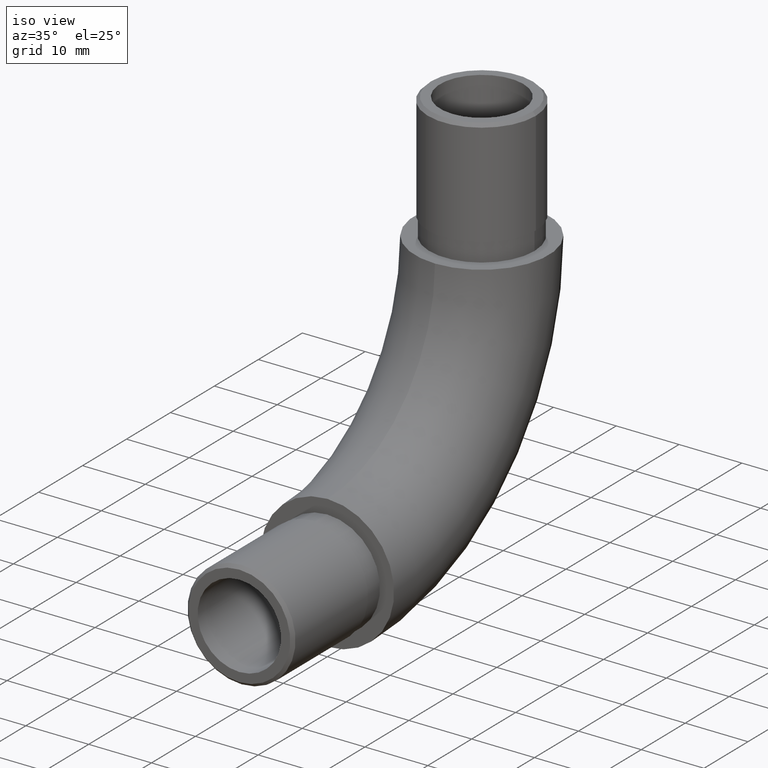
[diagram: clean part render]
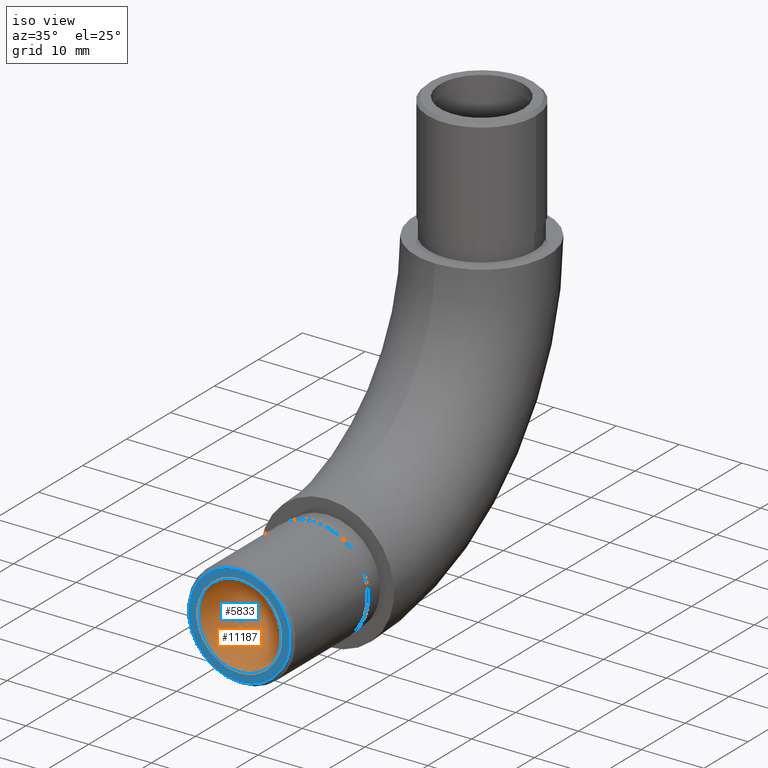
[diagram: same view with the hole feature highlighted: cylindrical wall and planar end face, labeled with their STEP entity ids]
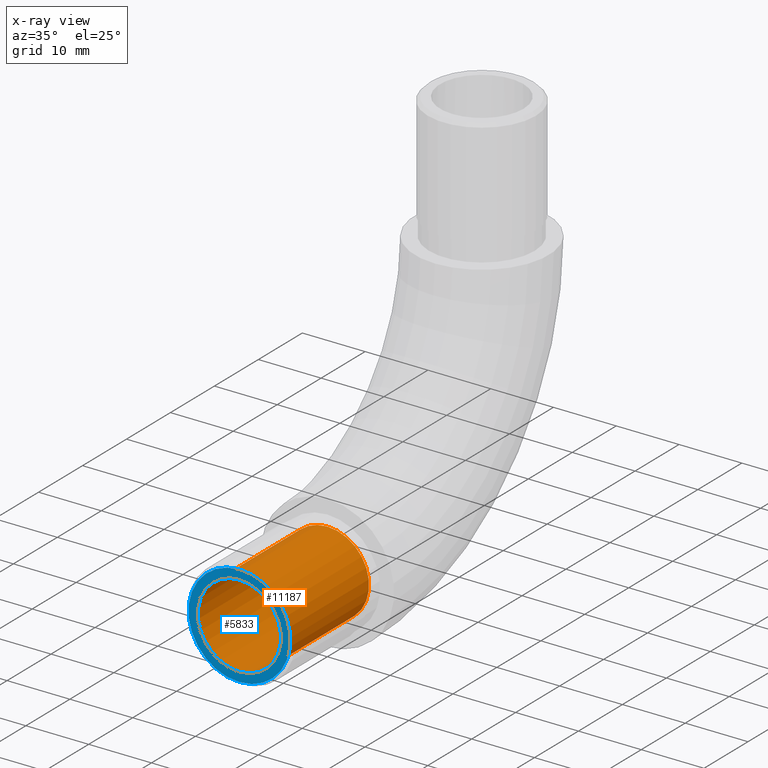
[diagram: x-ray of the same camera — body ghosted, the hole faces saturated]
A machine part, iso view. The highlighted faces form one hole feature of diameter 13.3 mm: the cylindrical wall (entity #11187, orange) and its adjacent planar end face (entity #5833, blue) — they share a circular edge in the B-rep.
The next image is the same camera in x-ray (body ghosted, the hole faces saturated) — the bore reads through the body.
Wall:
#566 = FACE_OUTER_BOUND ( 'NONE', #1739, .T. ) ;
#1011 = VERTEX_POINT ( 'NONE', #3988 ) ;
#1616 = EDGE_LOOP ( 'NONE', ( #3559 ) ) ;
#1624 = AXIS2_PLACEMENT_3D ( 'NONE', #12624, #7737, #1843 ) ;
#1739 = EDGE_LOOP ( 'NONE', ( #12222 ) ) ;
#1794 = CIRCLE ( 'NONE', #1624, 6.649999999999999500 ) ;
#1814 = DIRECTION ( 'NONE',  ( 0.0000000000000000000, 0.0000000000000000000, 1.000000000000000000 ) ) ;
#1843 = DIRECTION ( 'NONE',  ( 0.0000000000000000000, 0.0000000000000000000, 1.000000000000000000 ) ) ;
#3070 = AXIS2_PLACEMENT_3D ( 'NONE', #3836, #7710, #1814 ) ;
#3559 = ORIENTED_EDGE ( 'NONE', *, *, #9111, .T. ) ;
#3836 = CARTESIAN_POINT ( 'NONE',  ( 0.0000000000000000000, -3.000000000000000000, 10.65000000000000000 ) ) ;
#3988 = CARTESIAN_POINT ( 'NONE',  ( 0.0000000000000000000, -20.00000000000000000, 3.999999999999999100 ) ) ;
#4241 = DIRECTION ( 'NONE',  ( 0.0000000000000000000, -1.000000000000000000, 0.0000000000000000000 ) ) ;
#4901 = VERTEX_POINT ( 'NONE', #9851 ) ;
#6162 = CARTESIAN_POINT ( 'NONE',  ( 0.0000000000000000000, -20.00000000000000000, 10.65000000000000000 ) ) ;
#7487 = CYLINDRICAL_SURFACE ( 'NONE', #3070, 6.649999999999999500 ) ;
#7710 = DIRECTION ( 'NONE',  ( -0.0000000000000000000, 1.000000000000000000, -0.0000000000000000000 ) ) ;
#7737 = DIRECTION ( 'NONE',  ( 0.0000000000000000000, 1.000000000000000000, 0.0000000000000000000 ) ) ;
#7775 = FACE_OUTER_BOUND ( 'NONE', #1616, .T. ) ;
#8260 = CIRCLE ( 'NONE', #9569, 6.650000000000000400 ) ;
#9111 = EDGE_CURVE ( 'NONE', #4901, #4901, #1794, .T. ) ;
#9569 = AXIS2_PLACEMENT_3D ( 'NONE', #6162, #4241, #11953 ) ;
#9851 = CARTESIAN_POINT ( 'NONE',  ( 0.0000000000000000000, -6.938893903907228400E-015, 17.30000000000000100 ) ) ;
#11187 = ADVANCED_FACE ( 'NONE', ( #7775, #566 ), #7487, .F. ) ;
#11953 = DIRECTION ( 'NONE',  ( 0.0000000000000000000, 0.0000000000000000000, -1.000000000000000000 ) ) ;
#12222 = ORIENTED_EDGE ( 'NONE', *, *, #12348, .T. ) ;
#12348 = EDGE_CURVE ( 'NONE', #1011, #1011, #8260, .T. ) ;
#12624 = CARTESIAN_POINT ( 'NONE',  ( 0.0000000000000000000, -6.938893903907228400E-015, 10.65000000000000000 ) ) ;
End face:
#222 = CARTESIAN_POINT ( 'NONE',  ( 0.0000000000000000000, -20.00000000000000000, 10.65000000000000000 ) ) ;
#1011 = VERTEX_POINT ( 'NONE', #3988 ) ;
#1265 = ORIENTED_EDGE ( 'NONE', *, *, #10934, .T. ) ;
#2975 = CARTESIAN_POINT ( 'NONE',  ( 0.0000000000000000000, -20.00000000000000000, 2.549999999999989600 ) ) ;
#3269 = FACE_BOUND ( 'NONE', #7146, .T. ) ;
#3988 = CARTESIAN_POINT ( 'NONE',  ( 0.0000000000000000000, -20.00000000000000000, 3.999999999999999100 ) ) ;
#4241 = DIRECTION ( 'NONE',  ( 0.0000000000000000000, -1.000000000000000000, 0.0000000000000000000 ) ) ;
#4570 = CIRCLE ( 'NONE', #6605, 8.100000000000010300 ) ;
#4727 = VERTEX_POINT ( 'NONE', #2975 ) ;
#5804 = ORIENTED_EDGE ( 'NONE', *, *, #12348, .F. ) ;
#5833 = ADVANCED_FACE ( 'NONE', ( #10458, #3269 ), #12309, .T. ) ;
#6162 = CARTESIAN_POINT ( 'NONE',  ( 0.0000000000000000000, -20.00000000000000000, 10.65000000000000000 ) ) ;
#6605 = AXIS2_PLACEMENT_3D ( 'NONE', #222, #7106, #11288 ) ;
#6917 = EDGE_LOOP ( 'NONE', ( #1265 ) ) ;
#7106 = DIRECTION ( 'NONE',  ( 0.0000000000000000000, -1.000000000000000000, 0.0000000000000000000 ) ) ;
#7146 = EDGE_LOOP ( 'NONE', ( #5804 ) ) ;
#8260 = CIRCLE ( 'NONE', #9569, 6.650000000000000400 ) ;
#9241 = CARTESIAN_POINT ( 'NONE',  ( 0.0000000000000000000, -20.00000000000000000, 10.65000000000000000 ) ) ;
#9569 = AXIS2_PLACEMENT_3D ( 'NONE', #6162, #4241, #11953 ) ;
#10205 = DIRECTION ( 'NONE',  ( 0.0000000000000000000, -1.000000000000000000, 0.0000000000000000000 ) ) ;
#10332 = AXIS2_PLACEMENT_3D ( 'NONE', #9241, #10205, #11229 ) ;
#10458 = FACE_OUTER_BOUND ( 'NONE', #6917, .T. ) ;
#10934 = EDGE_CURVE ( 'NONE', #4727, #4727, #4570, .T. ) ;
#11229 = DIRECTION ( 'NONE',  ( 0.0000000000000000000, -0.0000000000000000000, -1.000000000000000000 ) ) ;
#11288 = DIRECTION ( 'NONE',  ( 0.0000000000000000000, 0.0000000000000000000, -1.000000000000000000 ) ) ;
#11953 = DIRECTION ( 'NONE',  ( 0.0000000000000000000, 0.0000000000000000000, -1.000000000000000000 ) ) ;
#12309 = PLANE ( 'NONE',  #10332 ) ;
#12348 = EDGE_CURVE ( 'NONE', #1011, #1011, #8260, .T. ) ;